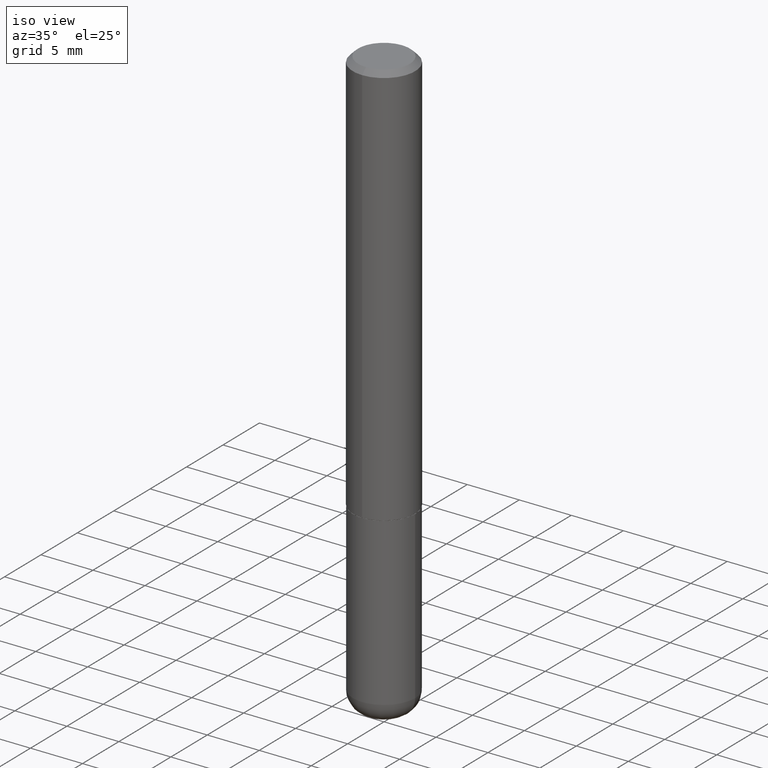
[diagram: clean part render]
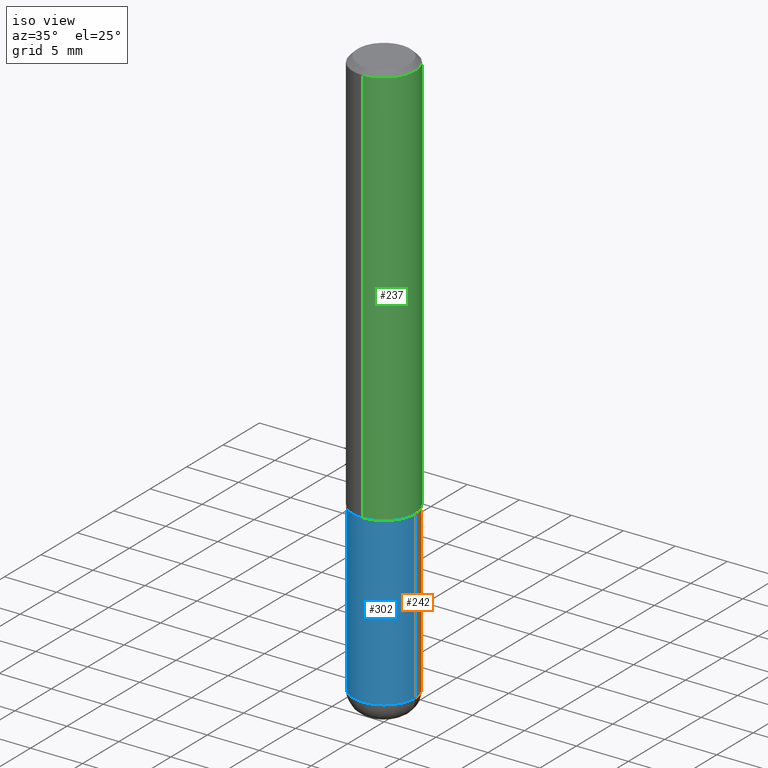
[diagram: same view with three faces highlighted in distinct colors, each labeled with its STEP entity id]
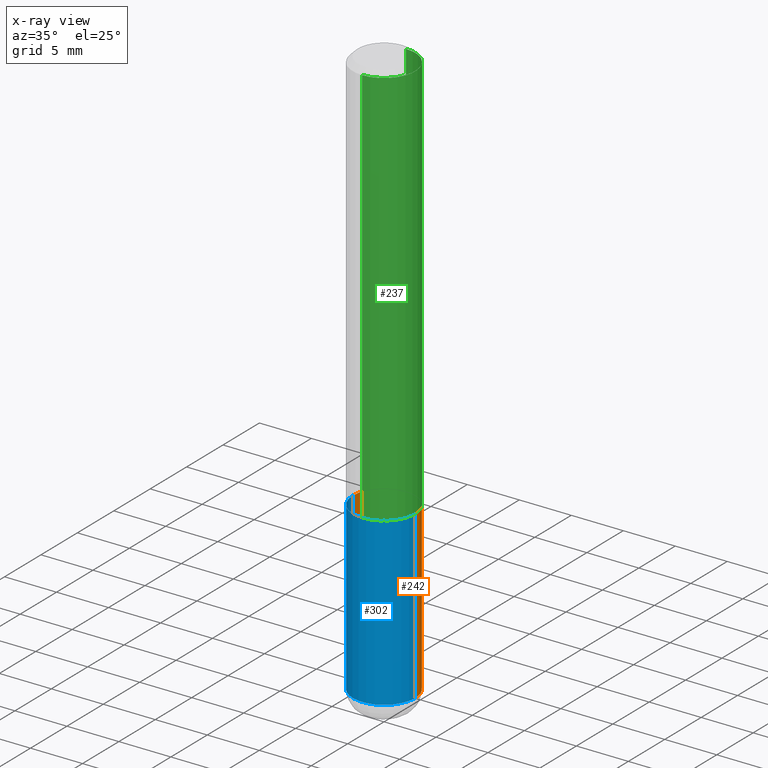
[diagram: x-ray of the same camera — body ghosted, the three highlighted faces saturated]
A machine part, iso view with three faces highlighted in distinct colors.
The next image is the same camera in x-ray (body ghosted, the three faces saturated) — at least one of them is partly hidden behind the body in this view.
Their STEP definitions:

[orange] entity #242 — the highlighted cylindrical surface (partial cylindrical patch) has radius 2.9997 mm, axis along (-0, 0, 1).
#14 = VECTOR ( 'NONE', #195, 39.37007874015748143 ) ;
#57 = VERTEX_POINT ( 'NONE', #70 ) ;
#58 = VECTOR ( 'NONE', #183, 39.37007874015748143 ) ;
#68 = CIRCLE ( 'NONE', #415, 0.1181000000000000383 ) ;
#70 = CARTESIAN_POINT ( 'NONE',  ( 0.1180999999999999689, -8.385141583365694108E-15, -2.165399999999999991 ) ) ;
#81 = ORIENTED_EDGE ( 'NONE', *, *, #260, .T. ) ;
#90 = CARTESIAN_POINT ( 'NONE',  ( 0.000000000000000000, 0.000000000000000000, 0.000000000000000000 ) ) ;
#92 = CYLINDRICAL_SURFACE ( 'NONE', #322, 0.1181000000000000105 ) ;
#94 = CARTESIAN_POINT ( 'NONE',  ( 5.295418152913295466E-29, -7.560453691130947423E-15, -2.165399999999999991 ) ) ;
#99 = EDGE_CURVE ( 'NONE', #368, #280, #68, .T. ) ;
#132 = LINE ( 'NONE', #331, #14 ) ;
#154 = FACE_OUTER_BOUND ( 'NONE', #175, .T. ) ;
#170 = ORIENTED_EDGE ( 'NONE', *, *, #99, .F. ) ;
#175 = EDGE_LOOP ( 'NONE', ( #288, #81, #170, #371 ) ) ;
#183 = DIRECTION ( 'NONE',  ( -2.445468806185136877E-29, 3.491481338843145188E-15, 1.000000000000000000 ) ) ;
#195 = DIRECTION ( 'NONE',  ( -2.445468806185136877E-29, 3.491481338843145188E-15, 1.000000000000000000 ) ) ;
#198 = DIRECTION ( 'NONE',  ( -2.445468806185136597E-29, 3.491481338843145583E-15, 1.000000000000000000 ) ) ;
#231 = LINE ( 'NONE', #358, #58 ) ;
#242 = ADVANCED_FACE ( 'NONE', ( #154 ), #92, .T. ) ;
#257 = DIRECTION ( 'NONE',  ( -2.445468806185136597E-29, 3.491481338843145583E-15, 1.000000000000000000 ) ) ;
#260 = EDGE_CURVE ( 'NONE', #305, #280, #231, .T. ) ;
#280 = VERTEX_POINT ( 'NONE', #336 ) ;
#287 = CARTESIAN_POINT ( 'NONE',  ( 3.754772805016658760E-29, -5.360820447659765363E-15, -1.535399999999999876 ) ) ;
#288 = ORIENTED_EDGE ( 'NONE', *, *, #332, .T. ) ;
#298 = EDGE_CURVE ( 'NONE', #57, #368, #132, .T. ) ;
#305 = VERTEX_POINT ( 'NONE', #393 ) ;
#322 = AXIS2_PLACEMENT_3D ( 'NONE', #90, #328, #350 ) ;
#328 = DIRECTION ( 'NONE',  ( -2.445468806185136597E-29, 3.491481338843145583E-15, 1.000000000000000000 ) ) ;
#329 = CIRCLE ( 'NONE', #381, 0.1180999999999999966 ) ;
#331 = CARTESIAN_POINT ( 'NONE',  ( 0.1181000000000000105, -8.246878922347482626E-16, 5.758764772215001141E-30 ) ) ;
#332 = EDGE_CURVE ( 'NONE', #57, #305, #329, .T. ) ;
#336 = CARTESIAN_POINT ( 'NONE',  ( -0.1181000000000000522, -5.621486098462677801E-15, -1.535399999999999876 ) ) ;
#345 = CARTESIAN_POINT ( 'NONE',  ( 0.1181000000000000383, -6.185508339894513625E-15, -1.535399999999999876 ) ) ;
#349 = DIRECTION ( 'NONE',  ( 1.000000000000000000, -6.982962677686262766E-15, 0.000000000000000000 ) ) ;
#350 = DIRECTION ( 'NONE',  ( 1.000000000000000000, -6.982962677686267499E-15, 4.876176775795936353E-29 ) ) ;
#358 = CARTESIAN_POINT ( 'NONE',  ( -0.1181000000000000105, 8.391509709326783943E-16, -5.809262341591044484E-30 ) ) ;
#360 = DIRECTION ( 'NONE',  ( 1.000000000000000000, -6.982962677686265133E-15, 0.000000000000000000 ) ) ;
#368 = VERTEX_POINT ( 'NONE', #345 ) ;
#371 = ORIENTED_EDGE ( 'NONE', *, *, #298, .F. ) ;
#381 = AXIS2_PLACEMENT_3D ( 'NONE', #94, #198, #360 ) ;
#393 = CARTESIAN_POINT ( 'NONE',  ( -0.1180999999999999689, -6.721302720198270015E-15, -2.165399999999999991 ) ) ;
#415 = AXIS2_PLACEMENT_3D ( 'NONE', #287, #257, #349 ) ;

[blue] entity #302 — the highlighted cylindrical surface (partial cylindrical patch) has radius 2.9997 mm, axis along (-0, 0, 1).
#14 = VECTOR ( 'NONE', #195, 39.37007874015748143 ) ;
#25 = DIRECTION ( 'NONE',  ( 1.000000000000000000, -6.982962677686265133E-15, 0.000000000000000000 ) ) ;
#31 = DIRECTION ( 'NONE',  ( 1.000000000000000000, -6.982962677686262766E-15, 0.000000000000000000 ) ) ;
#57 = VERTEX_POINT ( 'NONE', #70 ) ;
#58 = VECTOR ( 'NONE', #183, 39.37007874015748143 ) ;
#62 = CYLINDRICAL_SURFACE ( 'NONE', #220, 0.1181000000000000105 ) ;
#70 = CARTESIAN_POINT ( 'NONE',  ( 0.1180999999999999689, -8.385141583365694108E-15, -2.165399999999999991 ) ) ;
#77 = ORIENTED_EDGE ( 'NONE', *, *, #361, .F. ) ;
#78 = CARTESIAN_POINT ( 'NONE',  ( 3.754772805016658760E-29, -5.360820447659765363E-15, -1.535399999999999876 ) ) ;
#132 = LINE ( 'NONE', #331, #14 ) ;
#139 = EDGE_CURVE ( 'NONE', #305, #57, #315, .T. ) ;
#144 = ORIENTED_EDGE ( 'NONE', *, *, #260, .F. ) ;
#158 = DIRECTION ( 'NONE',  ( -2.445468806185136597E-29, 3.491481338843145583E-15, 1.000000000000000000 ) ) ;
#173 = EDGE_LOOP ( 'NONE', ( #144, #340, #241, #77 ) ) ;
#182 = DIRECTION ( 'NONE',  ( -2.445468806185136597E-29, 3.491481338843145583E-15, 1.000000000000000000 ) ) ;
#183 = DIRECTION ( 'NONE',  ( -2.445468806185136877E-29, 3.491481338843145188E-15, 1.000000000000000000 ) ) ;
#190 = DIRECTION ( 'NONE',  ( -2.445468806185136597E-29, 3.491481338843145583E-15, 1.000000000000000000 ) ) ;
#195 = DIRECTION ( 'NONE',  ( -2.445468806185136877E-29, 3.491481338843145188E-15, 1.000000000000000000 ) ) ;
#196 = CIRCLE ( 'NONE', #353, 0.1181000000000000383 ) ;
#203 = AXIS2_PLACEMENT_3D ( 'NONE', #294, #158, #25 ) ;
#220 = AXIS2_PLACEMENT_3D ( 'NONE', #390, #190, #325 ) ;
#231 = LINE ( 'NONE', #358, #58 ) ;
#241 = ORIENTED_EDGE ( 'NONE', *, *, #298, .T. ) ;
#260 = EDGE_CURVE ( 'NONE', #305, #280, #231, .T. ) ;
#269 = FACE_OUTER_BOUND ( 'NONE', #173, .T. ) ;
#280 = VERTEX_POINT ( 'NONE', #336 ) ;
#294 = CARTESIAN_POINT ( 'NONE',  ( 5.295418152913295466E-29, -7.560453691130947423E-15, -2.165399999999999991 ) ) ;
#298 = EDGE_CURVE ( 'NONE', #57, #368, #132, .T. ) ;
#302 = ADVANCED_FACE ( 'NONE', ( #269 ), #62, .T. ) ;
#305 = VERTEX_POINT ( 'NONE', #393 ) ;
#315 = CIRCLE ( 'NONE', #203, 0.1180999999999999966 ) ;
#325 = DIRECTION ( 'NONE',  ( 1.000000000000000000, -6.982962677686267499E-15, 4.876176775795936353E-29 ) ) ;
#331 = CARTESIAN_POINT ( 'NONE',  ( 0.1181000000000000105, -8.246878922347482626E-16, 5.758764772215001141E-30 ) ) ;
#336 = CARTESIAN_POINT ( 'NONE',  ( -0.1181000000000000522, -5.621486098462677801E-15, -1.535399999999999876 ) ) ;
#340 = ORIENTED_EDGE ( 'NONE', *, *, #139, .T. ) ;
#345 = CARTESIAN_POINT ( 'NONE',  ( 0.1181000000000000383, -6.185508339894513625E-15, -1.535399999999999876 ) ) ;
#353 = AXIS2_PLACEMENT_3D ( 'NONE', #78, #182, #31 ) ;
#358 = CARTESIAN_POINT ( 'NONE',  ( -0.1181000000000000105, 8.391509709326783943E-16, -5.809262341591044484E-30 ) ) ;
#361 = EDGE_CURVE ( 'NONE', #280, #368, #196, .T. ) ;
#368 = VERTEX_POINT ( 'NONE', #345 ) ;
#390 = CARTESIAN_POINT ( 'NONE',  ( 0.000000000000000000, 0.000000000000000000, 0.000000000000000000 ) ) ;
#393 = CARTESIAN_POINT ( 'NONE',  ( -0.1180999999999999689, -6.721302720198270015E-15, -2.165399999999999991 ) ) ;

[green] entity #237 — the highlighted cylindrical surface (partial cylindrical patch) has radius 2.9997 mm, axis along (-0, 0, 1).
#4 = CIRCLE ( 'NONE', #394, 0.1181000000000001493 ) ;
#8 = ORIENTED_EDGE ( 'NONE', *, *, #129, .T. ) ;
#13 = CARTESIAN_POINT ( 'NONE',  ( 8.391509709326786901E-16, 0.1181000000000000660, -4.115760378825227923E-16 ) ) ;
#24 = FACE_OUTER_BOUND ( 'NONE', #347, .T. ) ;
#27 = EDGE_CURVE ( 'NONE', #355, #411, #174, .T. ) ;
#51 = AXIS2_PLACEMENT_3D ( 'NONE', #86, #56, #264 ) ;
#56 = DIRECTION ( 'NONE',  ( -2.450009258804836628E-29, 3.484979152265221027E-15, 1.000000000000000000 ) ) ;
#59 = VECTOR ( 'NONE', #168, 39.37007874015748143 ) ;
#86 = CARTESIAN_POINT ( 'NONE',  ( 4.900018517609688844E-31, -6.969958304530464142E-17, -0.02000000000000006287 ) ) ;
#113 = DIRECTION ( 'NONE',  ( -2.450009258804836908E-29, 3.484979152265221421E-15, 1.000000000000000000 ) ) ;
#119 = CARTESIAN_POINT ( 'NONE',  ( -8.246878922347114820E-16, -0.1181000000000054923, -1.534399999999999320 ) ) ;
#129 = EDGE_CURVE ( 'NONE', #137, #355, #4, .T. ) ;
#137 = VERTEX_POINT ( 'NONE', #119 ) ;
#165 = CARTESIAN_POINT ( 'NONE',  ( -8.102248135368172434E-16, -0.1181000000000000660, -0.01999999999999965347 ) ) ;
#168 = DIRECTION ( 'NONE',  ( -2.450009258804836908E-29, 3.484979152265221421E-15, 1.000000000000000000 ) ) ;
#174 = LINE ( 'NONE', #13, #380 ) ;
#191 = DIRECTION ( 'NONE',  ( -2.450009258804836628E-29, 3.484979152265221027E-15, 1.000000000000000000 ) ) ;
#192 = CYLINDRICAL_SURFACE ( 'NONE', #239, 0.1181000000000000660 ) ;
#201 = CARTESIAN_POINT ( 'NONE',  ( 8.246878922347484598E-16, 0.1180999999999999273, -0.02000000000000047226 ) ) ;
#202 = EDGE_CURVE ( 'NONE', #379, #411, #338, .T. ) ;
#218 = ORIENTED_EDGE ( 'NONE', *, *, #27, .T. ) ;
#237 = ADVANCED_FACE ( 'NONE', ( #24 ), #192, .T. ) ;
#238 = LINE ( 'NONE', #364, #59 ) ;
#239 = AXIS2_PLACEMENT_3D ( 'NONE', #416, #389, #391 ) ;
#264 = DIRECTION ( 'NONE',  ( -6.982962677686265922E-15, -1.000000000000000000, 3.469747663417777397E-15 ) ) ;
#290 = DIRECTION ( 'NONE',  ( -6.982962677686265922E-15, -1.000000000000000000, 4.626330217890363814E-15 ) ) ;
#324 = CARTESIAN_POINT ( 'NONE',  ( 3.759294206710141458E-29, -5.347352011235754593E-15, -1.534399999999999986 ) ) ;
#338 = CIRCLE ( 'NONE', #51, 0.1180999999999999966 ) ;
#344 = ORIENTED_EDGE ( 'NONE', *, *, #202, .F. ) ;
#347 = EDGE_LOOP ( 'NONE', ( #8, #218, #344, #373 ) ) ;
#355 = VERTEX_POINT ( 'NONE', #369 ) ;
#364 = CARTESIAN_POINT ( 'NONE',  ( -8.246878922347484598E-16, -0.1181000000000000660, 4.115760378825227923E-16 ) ) ;
#369 = CARTESIAN_POINT ( 'NONE',  ( 8.391509709326979186E-16, 0.1180999999999948064, -1.534400000000000430 ) ) ;
#373 = ORIENTED_EDGE ( 'NONE', *, *, #387, .F. ) ;
#379 = VERTEX_POINT ( 'NONE', #165 ) ;
#380 = VECTOR ( 'NONE', #113, 39.37007874015748143 ) ;
#387 = EDGE_CURVE ( 'NONE', #137, #379, #238, .T. ) ;
#389 = DIRECTION ( 'NONE',  ( -2.450009258804836628E-29, 3.484979152265221027E-15, 1.000000000000000000 ) ) ;
#391 = DIRECTION ( 'NONE',  ( -6.982962677686265922E-15, -1.000000000000000000, 3.484979152265220632E-15 ) ) ;
#394 = AXIS2_PLACEMENT_3D ( 'NONE', #324, #191, #290 ) ;
#411 = VERTEX_POINT ( 'NONE', #201 ) ;
#416 = CARTESIAN_POINT ( 'NONE',  ( 0.000000000000000000, 0.000000000000000000, 0.000000000000000000 ) ) ;